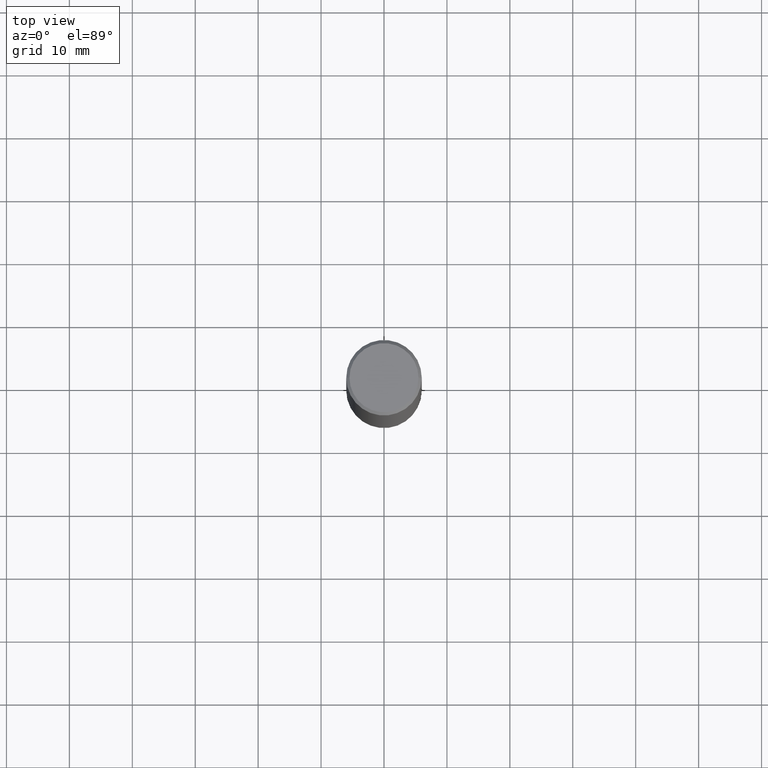
[diagram: clean part render]
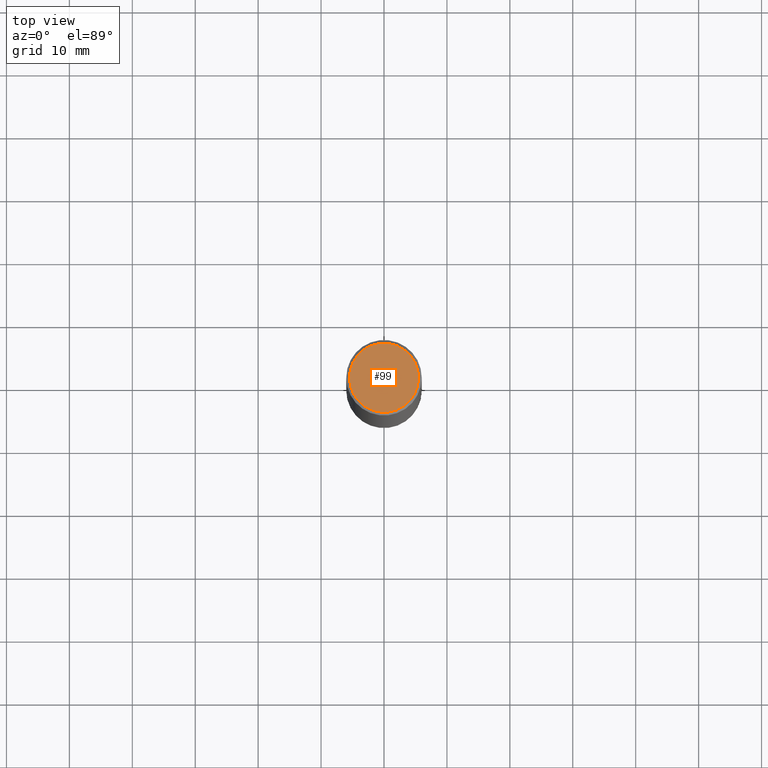
[diagram: same view with one face highlighted and labeled with its STEP entity id]
A machine part, top view. The second image highlights one B-rep face of the part: STEP entity #99.
In plain terms, the highlighted planar face has unit normal (0, -0, -1).
Its self-contained STEP definition (entity closure, byte-faithful):
#12 = EDGE_CURVE ( 'NONE', #55, #101, #13, .T. ) ;
#13 = CIRCLE ( 'NONE', #124, 0.2161999999999995037 ) ;
#39 = AXIS2_PLACEMENT_3D ( 'NONE', #180, #142, #265 ) ;
#55 = VERTEX_POINT ( 'NONE', #353 ) ;
#66 = FACE_OUTER_BOUND ( 'NONE', #279, .T. ) ;
#90 = CARTESIAN_POINT ( 'NONE',  ( 0.2161999999999995037, -1.586759460484348635E-15, 4.268512490111238857E-18 ) ) ;
#93 = AXIS2_PLACEMENT_3D ( 'NONE', #216, #325, #350 ) ;
#99 = ADVANCED_FACE ( 'NONE', ( #66 ), #207, .F. ) ;
#101 = VERTEX_POINT ( 'NONE', #90 ) ;
#106 = ORIENTED_EDGE ( 'NONE', *, *, #12, .T. ) ;
#124 = AXIS2_PLACEMENT_3D ( 'NONE', #177, #181, #319 ) ;
#142 = DIRECTION ( 'NONE',  ( 2.438088387897960049E-29, -3.491481338843145188E-15, -1.000000000000000000 ) ) ;
#153 = EDGE_CURVE ( 'NONE', #101, #55, #290, .T. ) ;
#177 = CARTESIAN_POINT ( 'NONE',  ( -1.043851414335219820E-46, 1.490343170380447200E-32, 4.268512490100411279E-18 ) ) ;
#180 = CARTESIAN_POINT ( 'NONE',  ( 1.509716530915767168E-15, 0.2161999999999995037, -7.527240092128361316E-16 ) ) ;
#181 = DIRECTION ( 'NONE',  ( -2.445468806185136597E-29, 3.491481338843145583E-15, 1.000000000000000000 ) ) ;
#207 = PLANE ( 'NONE',  #39 ) ;
#216 = CARTESIAN_POINT ( 'NONE',  ( -1.043851414335219820E-46, 1.490343170380447200E-32, 4.268512490100411279E-18 ) ) ;
#265 = DIRECTION ( 'NONE',  ( -1.000000000000000000, 6.982962677686265922E-15, -4.876176775795935793E-29 ) ) ;
#279 = EDGE_LOOP ( 'NONE', ( #106, #334 ) ) ;
#290 = CIRCLE ( 'NONE', #93, 0.2161999999999995037 ) ;
#319 = DIRECTION ( 'NONE',  ( 1.000000000000000000, -6.982962677686266711E-15, 4.876217060660166886E-29 ) ) ;
#325 = DIRECTION ( 'NONE',  ( -2.445468806185136597E-29, 3.491481338843145583E-15, 1.000000000000000000 ) ) ;
#334 = ORIENTED_EDGE ( 'NONE', *, *, #153, .T. ) ;
#350 = DIRECTION ( 'NONE',  ( 1.000000000000000000, -6.982962677686266711E-15, 4.876217060660166886E-29 ) ) ;
#353 = CARTESIAN_POINT ( 'NONE',  ( -0.2161999999999995037, 1.544631344304198620E-15, 4.268512490089730842E-18 ) ) ;